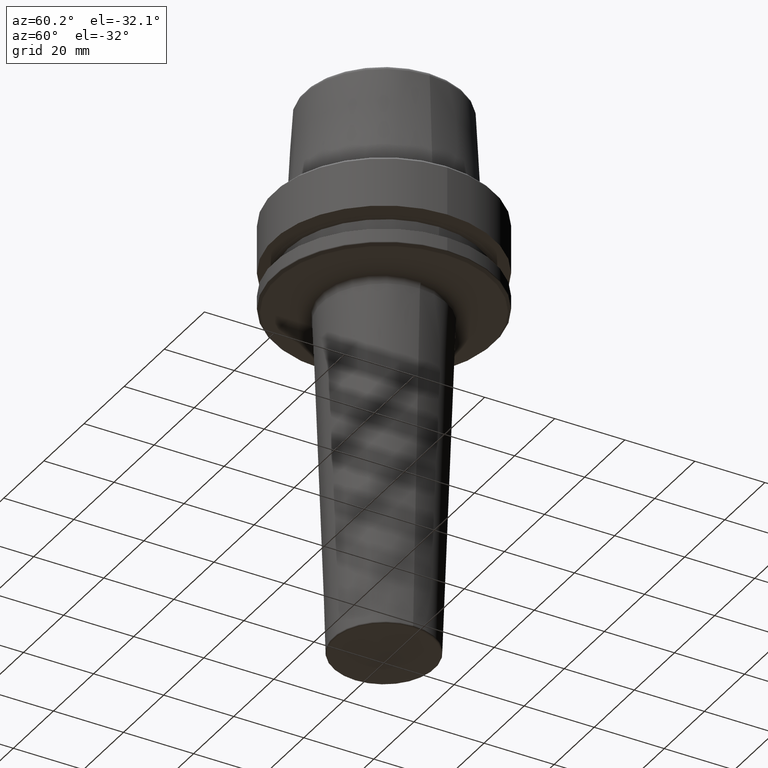
[diagram: clean part render]
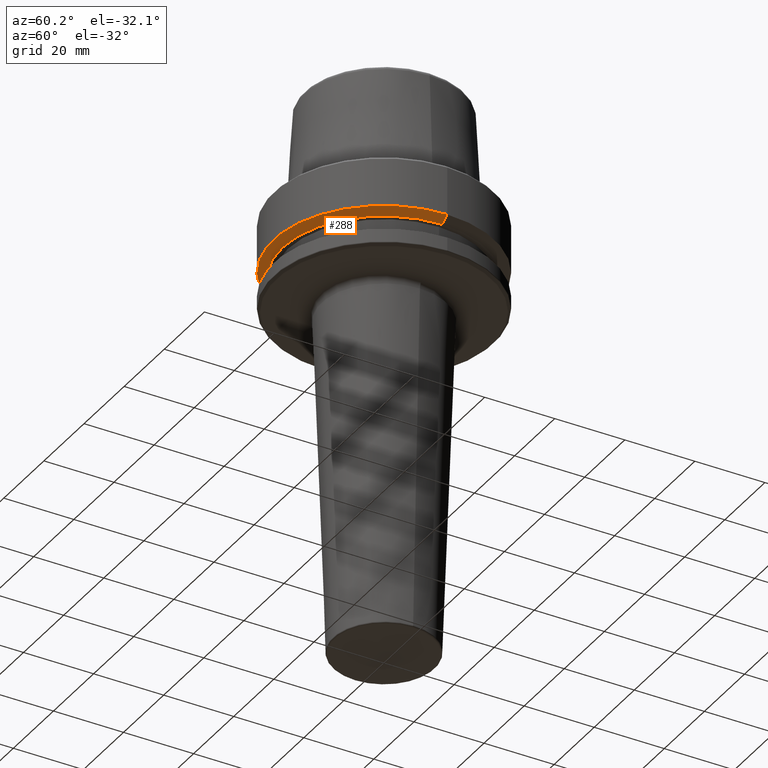
[diagram: same view with one face highlighted and labeled with its STEP entity id]
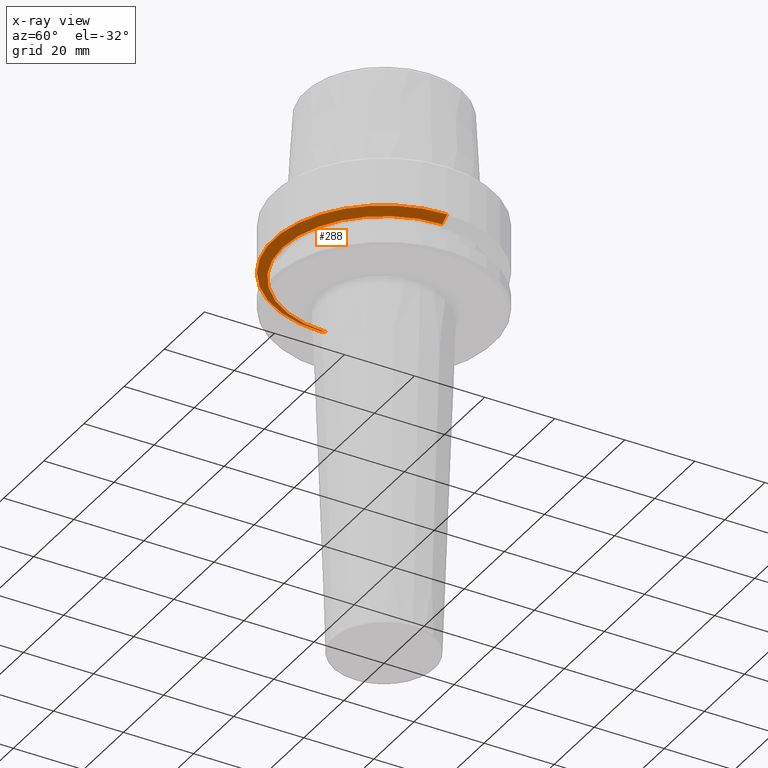
[diagram: x-ray of the same camera — body ghosted, the highlighted face saturated]
A machine part, auxiliary view. The second image highlights one B-rep face of the part: STEP entity #288.
The next image is the same camera in x-ray: the body ghosted, the highlighted face saturated — about 10% of this face is hidden behind the body in this view.
In plain terms, the highlighted conical surface has half-angle 60 deg.
Its self-contained STEP definition (entity closure, byte-faithful):
#38 = FACE_OUTER_BOUND ( 'NONE', #1221, .T. ) ;
#93 = VERTEX_POINT ( 'NONE', #462 ) ;
#125 = VECTOR ( 'NONE', #828, 1000.000000000000000 ) ;
#135 = CONICAL_SURFACE ( 'NONE', #611, 28.94089653438085100, 1.047197551196598300 ) ;
#151 = DIRECTION ( 'NONE',  ( 1.000000000000000000, 0.0000000000000000000, 0.0000000000000000000 ) ) ;
#181 = CIRCLE ( 'NONE', #1222, 31.50000000000000000 ) ;
#224 = AXIS2_PLACEMENT_3D ( 'NONE', #1060, #494, #435 ) ;
#288 = ADVANCED_FACE ( 'NONE', ( #38 ), #135, .T. ) ;
#325 = VECTOR ( 'NONE', #658, 1000.000000000000000 ) ;
#365 = CARTESIAN_POINT ( 'NONE',  ( 31.50000000000000000, 0.0000000000000000000, -14.62250092524070100 ) ) ;
#423 = ORIENTED_EDGE ( 'NONE', *, *, #947, .T. ) ;
#435 = DIRECTION ( 'NONE',  ( 1.000000000000000000, 0.0000000000000000000, 0.0000000000000000000 ) ) ;
#449 = CARTESIAN_POINT ( 'NONE',  ( 28.94089653438085100, 0.0000000000000000000, -16.10000000000001600 ) ) ;
#462 = CARTESIAN_POINT ( 'NONE',  ( -31.50000000000000000, 3.857637417314162700E-015, -14.62250092524070100 ) ) ;
#485 = CARTESIAN_POINT ( 'NONE',  ( 0.0000000000000000000, 0.0000000000000000000, -14.62250092524070100 ) ) ;
#494 = DIRECTION ( 'NONE',  ( -0.0000000000000000000, -0.0000000000000000000, 1.000000000000000000 ) ) ;
#532 = CARTESIAN_POINT ( 'NONE',  ( 0.0000000000000000000, 0.0000000000000000000, -16.10000000000001600 ) ) ;
#539 = CARTESIAN_POINT ( 'NONE',  ( 28.94089653438085100, 0.0000000000000000000, -16.10000000000001600 ) ) ;
#571 = DIRECTION ( 'NONE',  ( 1.000000000000000000, 0.0000000000000000000, 0.0000000000000000000 ) ) ;
#611 = AXIS2_PLACEMENT_3D ( 'NONE', #532, #1202, #151 ) ;
#638 = ORIENTED_EDGE ( 'NONE', *, *, #1178, .T. ) ;
#639 = LINE ( 'NONE', #449, #125 ) ;
#658 = DIRECTION ( 'NONE',  ( -0.8660254037844389300, 1.060575238724907300E-016, 0.4999999999999995000 ) ) ;
#715 = VERTEX_POINT ( 'NONE', #365 ) ;
#735 = EDGE_CURVE ( 'NONE', #858, #93, #1099, .T. ) ;
#803 = CARTESIAN_POINT ( 'NONE',  ( -28.94089653438085100, 3.700937523921292900E-015, -16.10000000000001600 ) ) ;
#828 = DIRECTION ( 'NONE',  ( 0.8660254037844389300, 0.0000000000000000000, 0.4999999999999995000 ) ) ;
#858 = VERTEX_POINT ( 'NONE', #803 ) ;
#904 = EDGE_CURVE ( 'NONE', #93, #715, #181, .T. ) ;
#947 = EDGE_CURVE ( 'NONE', #858, #1113, #1141, .T. ) ;
#1008 = ORIENTED_EDGE ( 'NONE', *, *, #735, .F. ) ;
#1039 = CARTESIAN_POINT ( 'NONE',  ( -28.94089653438085100, 3.544237630528423800E-015, -16.10000000000001600 ) ) ;
#1048 = ORIENTED_EDGE ( 'NONE', *, *, #904, .F. ) ;
#1060 = CARTESIAN_POINT ( 'NONE',  ( 0.0000000000000000000, 0.0000000000000000000, -16.10000000000001600 ) ) ;
#1099 = LINE ( 'NONE', #1039, #325 ) ;
#1113 = VERTEX_POINT ( 'NONE', #539 ) ;
#1141 = CIRCLE ( 'NONE', #224, 28.94089653438085100 ) ;
#1142 = DIRECTION ( 'NONE',  ( -0.0000000000000000000, -0.0000000000000000000, 1.000000000000000000 ) ) ;
#1178 = EDGE_CURVE ( 'NONE', #1113, #715, #639, .T. ) ;
#1202 = DIRECTION ( 'NONE',  ( -0.0000000000000000000, -0.0000000000000000000, 1.000000000000000000 ) ) ;
#1221 = EDGE_LOOP ( 'NONE', ( #1008, #423, #638, #1048 ) ) ;
#1222 = AXIS2_PLACEMENT_3D ( 'NONE', #485, #1142, #571 ) ;